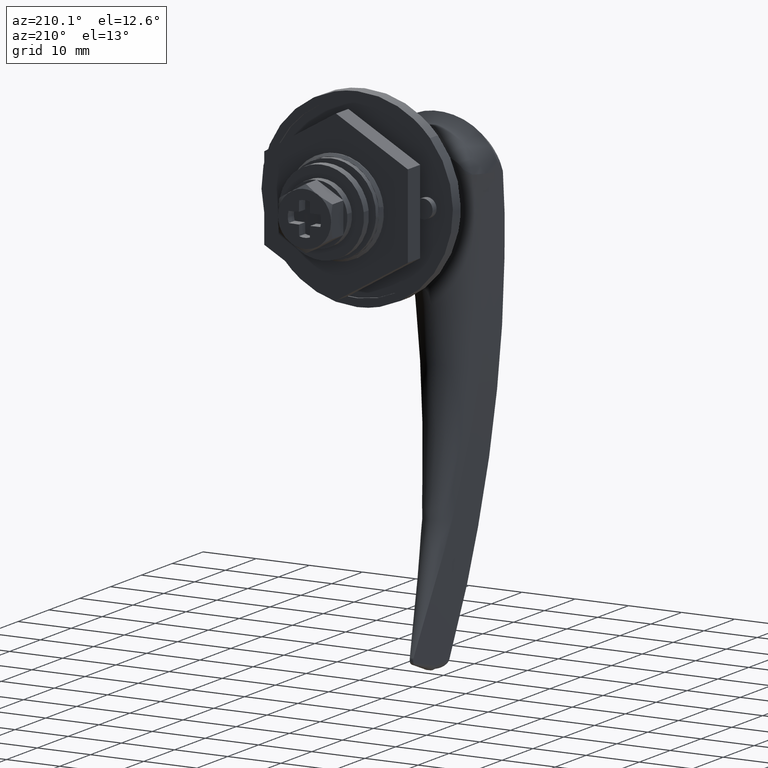
[diagram: clean part render]
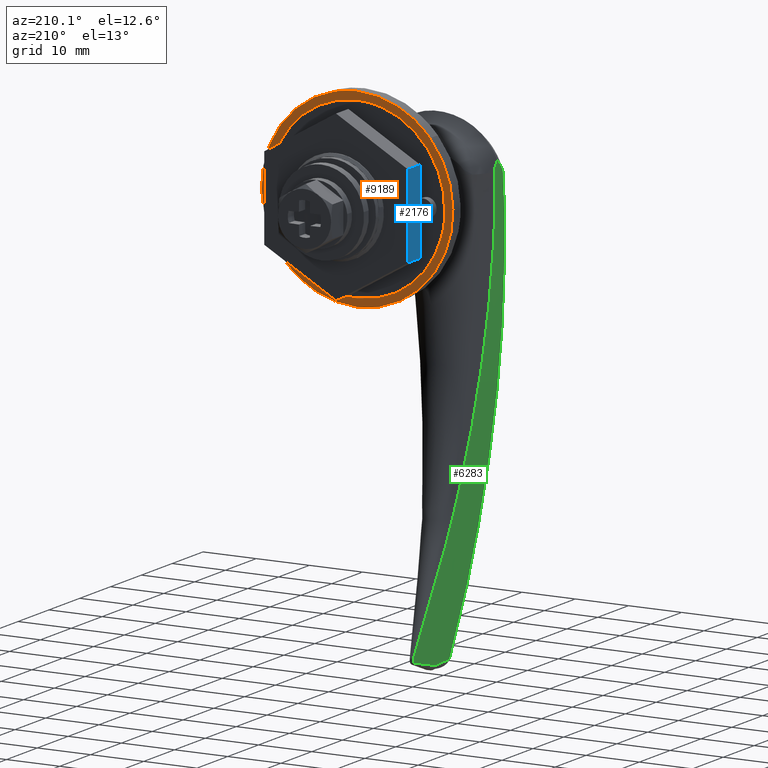
[diagram: same view with three faces highlighted in distinct colors, each labeled with its STEP entity id]
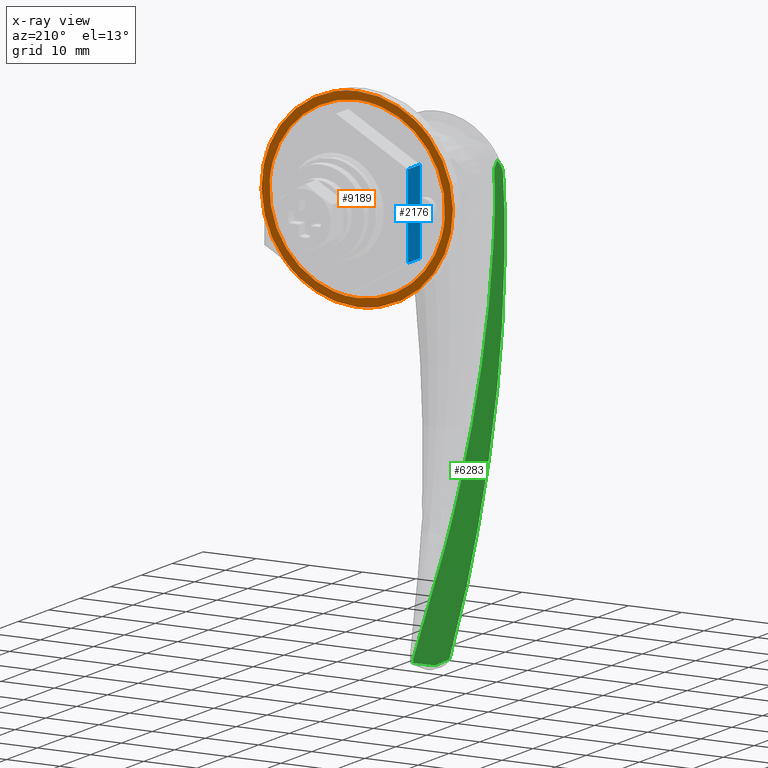
[diagram: x-ray of the same camera — body ghosted, the three highlighted faces saturated]
A machine part, auxiliary view with three faces highlighted in distinct colors.
The next image is the same camera in x-ray (body ghosted, the three faces saturated) — at least one of them is partly hidden behind the body in this view.
Their STEP definitions:

[orange] entity #9189 — the highlighted face is a freeform B-spline surface patch.
#8590=CARTESIAN_POINT('',(7.999999999999789,16.449136006591200,-1.294575079578128));
#8591=VERTEX_POINT('',#8590);
#8597=CARTESIAN_POINT('',(7.999999999999789,0.0,16.500000000000000));
#8598=VERTEX_POINT('',#8597);
#8599=CARTESIAN_POINT('',(7.999999999999789,16.449136006591200,-1.294575079578127));
#8600=CARTESIAN_POINT('',(7.999999999999788,16.500000000000004,-0.648286765695551));
#8601=CARTESIAN_POINT('',(7.999999999999789,16.500000000000000,0.0));
#8602=CARTESIAN_POINT('',(7.999999999999789,16.499999999999993,16.499999999999993));
#8603=CARTESIAN_POINT('',(7.999999999999789,0.0,16.500000000000000));
#8611=(BOUNDED_CURVE()B_SPLINE_CURVE(2,(#8599,#8600,#8601,#8602,#8603),.UNSPECIFIED.,.F.,.U.)B_SPLINE_CURVE_WITH_KNOTS((3,2,3),(0.736331300631335,0.750000000000000,1.0),.UNSPECIFIED.)CURVE()GEOMETRIC_REPRESENTATION_ITEM()RATIONAL_B_SPLINE_CURVE((0.969723356168828,0.983986122579674,1.0,0.707106781186548,1.0))REPRESENTATION_ITEM(''));
#8612=EDGE_CURVE('',#8591,#8598,#8611,.T.);
#8614=CARTESIAN_POINT('',(7.999999999999789,-16.449136006591200,1.294575079578131));
#8615=VERTEX_POINT('',#8614);
#8616=CARTESIAN_POINT('',(7.999999999999789,0.0,16.500000000000000));
#8617=CARTESIAN_POINT('',(7.999999999999789,-15.252443112232630,16.499999999999996));
#8618=CARTESIAN_POINT('',(7.999999999999789,-16.449136006591203,1.294575079578132));
#8626=(BOUNDED_CURVE()B_SPLINE_CURVE(2,(#8616,#8617,#8618),.UNSPECIFIED.,.F.,.U.)B_SPLINE_CURVE_WITH_KNOTS((3,3),(0.0,0.236331300631335),.UNSPECIFIED.)CURVE()GEOMETRIC_REPRESENTATION_ITEM()RATIONAL_B_SPLINE_CURVE((1.0,0.723120658606874,0.969723356168828))REPRESENTATION_ITEM(''));
#8627=EDGE_CURVE('',#8598,#8615,#8626,.T.);
#8673=CARTESIAN_POINT('',(7.999999999999789,0.0,-16.500000000000000));
#8674=VERTEX_POINT('',#8673);
#8675=CARTESIAN_POINT('',(7.999999999999789,-16.449136006591200,1.294575079578131));
#8676=CARTESIAN_POINT('',(7.999999999999789,-16.499999999999996,0.648286765695553));
#8677=CARTESIAN_POINT('',(7.999999999999789,-16.500000000000000,0.0));
#8678=CARTESIAN_POINT('',(7.999999999999789,-16.499999999999993,-16.499999999999993));
#8679=CARTESIAN_POINT('',(7.999999999999789,0.0,-16.500000000000000));
#8687=(BOUNDED_CURVE()B_SPLINE_CURVE(2,(#8675,#8676,#8677,#8678,#8679),.UNSPECIFIED.,.F.,.U.)B_SPLINE_CURVE_WITH_KNOTS((3,2,3),(0.236331300631335,0.250000000000000,0.500000000000000),.UNSPECIFIED.)CURVE()GEOMETRIC_REPRESENTATION_ITEM()RATIONAL_B_SPLINE_CURVE((0.969723356168828,0.983986122579674,1.0,0.707106781186548,1.0))REPRESENTATION_ITEM(''));
#8688=EDGE_CURVE('',#8615,#8674,#8687,.T.);
#8690=CARTESIAN_POINT('',(7.999999999999789,0.0,-16.500000000000000));
#8691=CARTESIAN_POINT('',(7.999999999999789,15.252443112232722,-16.500000000000007));
#8692=CARTESIAN_POINT('',(7.999999999999789,16.449136006591203,-1.294575079578128));
#8700=(BOUNDED_CURVE()B_SPLINE_CURVE(2,(#8690,#8691,#8692),.UNSPECIFIED.,.F.,.U.)B_SPLINE_CURVE_WITH_KNOTS((3,3),(0.500000000000000,0.736331300631336),.UNSPECIFIED.)CURVE()GEOMETRIC_REPRESENTATION_ITEM()RATIONAL_B_SPLINE_CURVE((1.0,0.723120658606873,0.969723356168830))REPRESENTATION_ITEM(''));
#8701=EDGE_CURVE('',#8674,#8591,#8700,.T.);
#8757=CARTESIAN_POINT('',(7.999999999999799,13.687309883016390,11.690061940223710));
#8758=VERTEX_POINT('',#8757);
#8764=CARTESIAN_POINT('',(7.999999999999799,0.0,-18.0));
#8765=VERTEX_POINT('',#8764);
#8766=CARTESIAN_POINT('',(7.999999999999799,13.687309883016383,11.690061940223710));
#8767=CARTESIAN_POINT('',(7.999999999999799,18.0,6.640548399370755));
#8768=CARTESIAN_POINT('',(7.999999999999799,18.0,0.0));
#8769=CARTESIAN_POINT('',(7.999999999999799,18.000000000000007,-18.000000000000007));
#8770=CARTESIAN_POINT('',(7.999999999999799,0.0,-18.0));
#8778=(BOUNDED_CURVE()B_SPLINE_CURVE(2,(#8766,#8767,#8768,#8769,#8770),.UNSPECIFIED.,.F.,.U.)B_SPLINE_CURVE_WITH_KNOTS((3,2,3),(0.136856870997593,0.250000000000000,0.500000000000000),.UNSPECIFIED.)CURVE()GEOMETRIC_REPRESENTATION_ITEM()RATIONAL_B_SPLINE_CURVE((0.854871038828549,0.867444579039437,1.0,0.707106781186547,1.0))REPRESENTATION_ITEM(''));
#8779=EDGE_CURVE('',#8758,#8765,#8778,.T.);
#8781=CARTESIAN_POINT('',(7.999999999999799,-13.687309883016390,-11.690061940223710));
#8782=VERTEX_POINT('',#8781);
#8783=CARTESIAN_POINT('',(7.999999999999799,0.0,-18.0));
#8784=CARTESIAN_POINT('',(7.999999999999798,-8.298115995525002,-17.999999999999996));
#8785=CARTESIAN_POINT('',(7.999999999999799,-13.687309883016393,-11.690061940223709));
#8793=(BOUNDED_CURVE()B_SPLINE_CURVE(2,(#8783,#8784,#8785),.UNSPECIFIED.,.F.,.U.)B_SPLINE_CURVE_WITH_KNOTS((3,3),(0.500000000000000,0.636856870997593),.UNSPECIFIED.)CURVE()GEOMETRIC_REPRESENTATION_ITEM()RATIONAL_B_SPLINE_CURVE((1.0,0.839662202147110,0.854871038828549))REPRESENTATION_ITEM(''));
#8794=EDGE_CURVE('',#8765,#8782,#8793,.T.);
#8898=CARTESIAN_POINT('',(7.999999999999799,0.0,18.0));
#8899=VERTEX_POINT('',#8898);
#8900=CARTESIAN_POINT('',(7.999999999999799,-13.687309883016393,-11.690061940223709));
#8901=CARTESIAN_POINT('',(7.999999999999799,-18.0,-6.640548399370755));
#8902=CARTESIAN_POINT('',(7.999999999999799,-18.0,0.0));
#8903=CARTESIAN_POINT('',(7.999999999999799,-18.000000000000007,18.000000000000007));
#8904=CARTESIAN_POINT('',(7.999999999999799,0.0,18.0));
#8912=(BOUNDED_CURVE()B_SPLINE_CURVE(2,(#8900,#8901,#8902,#8903,#8904),.UNSPECIFIED.,.F.,.U.)B_SPLINE_CURVE_WITH_KNOTS((3,2,3),(0.636856870997593,0.750000000000000,1.0),.UNSPECIFIED.)CURVE()GEOMETRIC_REPRESENTATION_ITEM()RATIONAL_B_SPLINE_CURVE((0.854871038828549,0.867444579039437,1.0,0.707106781186547,1.0))REPRESENTATION_ITEM(''));
#8913=EDGE_CURVE('',#8782,#8899,#8912,.T.);
#8915=CARTESIAN_POINT('',(7.999999999999799,0.0,18.0));
#8916=CARTESIAN_POINT('',(7.999999999999798,8.298115995525002,17.999999999999996));
#8917=CARTESIAN_POINT('',(7.999999999999799,13.687309883016383,11.690061940223710));
#8925=(BOUNDED_CURVE()B_SPLINE_CURVE(2,(#8915,#8916,#8917),.UNSPECIFIED.,.F.,.U.)B_SPLINE_CURVE_WITH_KNOTS((3,3),(0.0,0.136856870997593),.UNSPECIFIED.)CURVE()GEOMETRIC_REPRESENTATION_ITEM()RATIONAL_B_SPLINE_CURVE((1.0,0.839662202147110,0.854871038828549))REPRESENTATION_ITEM(''));
#8926=EDGE_CURVE('',#8899,#8758,#8925,.T.);
#9172=CARTESIAN_POINT('',(7.999999999999799,-19.792705549083308,-19.798199930225010));
#9173=CARTESIAN_POINT('',(7.999999999999799,-19.792705549083308,19.798200895820258));
#9174=CARTESIAN_POINT('',(7.999999999999799,19.792706514678549,-19.798199930225010));
#9175=CARTESIAN_POINT('',(7.999999999999799,19.792706514678549,19.798200895820258));
#9176=B_SPLINE_SURFACE_WITH_KNOTS('',1,1,((#9172,#9174),(#9173,#9175)),.UNSPECIFIED.,.F.,.F.,.U.,(2,2),(2,2),(0.0,39.596400826045269),(0.0,39.585412063761872),.UNSPECIFIED.);
#9177=ORIENTED_EDGE('',*,*,#8794,.F.);
#9178=ORIENTED_EDGE('',*,*,#8779,.F.);
#9179=ORIENTED_EDGE('',*,*,#8926,.F.);
#9180=ORIENTED_EDGE('',*,*,#8913,.F.);
#9181=EDGE_LOOP('',(#9177,#9178,#9179,#9180));
#9182=FACE_OUTER_BOUND('',#9181,.T.);
#9183=ORIENTED_EDGE('',*,*,#8701,.F.);
#9184=ORIENTED_EDGE('',*,*,#8688,.F.);
#9185=ORIENTED_EDGE('',*,*,#8627,.F.);
#9186=ORIENTED_EDGE('',*,*,#8612,.F.);
#9187=EDGE_LOOP('',(#9183,#9184,#9185,#9186));
#9188=FACE_BOUND('',#9187,.T.);
#9189=ADVANCED_FACE('',(#9182,#9188),#9176,.F.);

[blue] entity #2176 — the highlighted face is a freeform B-spline surface patch.
#2118=CARTESIAN_POINT('',(10.866025403784439,13.500000000000000,7.793999999999800));
#2119=VERTEX_POINT('',#2118);
#2134=CARTESIAN_POINT('',(14.866025403784461,13.500000000000000,7.793999999999800));
#2135=VERTEX_POINT('',#2134);
#2141=CARTESIAN_POINT('',(14.866025403784461,13.500000000000000,7.793999999999800));
#2142=CARTESIAN_POINT('',(10.866025403784439,13.500000000000000,7.793999999999800));
#2143=QUASI_UNIFORM_CURVE('',1,(#2141,#2142),.UNSPECIFIED.,.F.,.U.);
#2144=EDGE_CURVE('',#2135,#2119,#2143,.T.);
#2149=CARTESIAN_POINT('',(10.666224989529180,13.500000000000000,8.572620716116225));
#2150=CARTESIAN_POINT('',(10.666224989529180,13.500000000000000,-8.572620994851794));
#2151=CARTESIAN_POINT('',(15.065824923970050,13.500000000000000,8.572620716116225));
#2152=CARTESIAN_POINT('',(15.065824923970050,13.500000000000000,-8.572620994851794));
#2153=B_SPLINE_SURFACE_WITH_KNOTS('',1,1,((#2149,#2151),(#2150,#2152)),.UNSPECIFIED.,.F.,.F.,.U.,(2,2),(2,2),(0.0,17.145241710968019),(0.0,4.399599934440877),.UNSPECIFIED.);
#2154=CARTESIAN_POINT('',(10.866025403784439,13.500000000000000,-7.794000000000209));
#2155=VERTEX_POINT('',#2154);
#2156=CARTESIAN_POINT('',(10.866025403784439,13.500000000000000,-7.794000000000209));
#2157=CARTESIAN_POINT('',(10.866025403784439,13.500000000000000,7.793999999999800));
#2158=QUASI_UNIFORM_CURVE('',1,(#2156,#2157),.UNSPECIFIED.,.F.,.U.);
#2159=EDGE_CURVE('',#2155,#2119,#2158,.T.);
#2160=ORIENTED_EDGE('',*,*,#2159,.T.);
#2161=ORIENTED_EDGE('',*,*,#2144,.F.);
#2162=CARTESIAN_POINT('',(14.866025403784461,13.500000000000000,-7.794000000000209));
#2163=VERTEX_POINT('',#2162);
#2164=CARTESIAN_POINT('',(14.866025403784461,13.500000000000000,-7.794000000000209));
#2165=CARTESIAN_POINT('',(14.866025403784461,13.500000000000000,7.793999999999800));
#2166=QUASI_UNIFORM_CURVE('',1,(#2164,#2165),.UNSPECIFIED.,.F.,.U.);
#2167=EDGE_CURVE('',#2163,#2135,#2166,.T.);
#2168=ORIENTED_EDGE('',*,*,#2167,.F.);
#2169=CARTESIAN_POINT('',(14.866025403784461,13.500000000000000,-7.794000000000209));
#2170=CARTESIAN_POINT('',(10.866025403784439,13.500000000000000,-7.794000000000209));
#2171=QUASI_UNIFORM_CURVE('',1,(#2169,#2170),.UNSPECIFIED.,.F.,.U.);
#2172=EDGE_CURVE('',#2163,#2155,#2171,.T.);
#2173=ORIENTED_EDGE('',*,*,#2172,.T.);
#2174=EDGE_LOOP('',(#2160,#2161,#2168,#2173));
#2175=FACE_OUTER_BOUND('',#2174,.T.);
#2176=ADVANCED_FACE('',(#2175),#2153,.F.);

[green] entity #6283 — the highlighted face is a freeform B-spline surface patch.
#3579=CARTESIAN_POINT('',(-15.065196493878950,1.283048675955330,-82.048152637155795));
#3580=VERTEX_POINT('',#3579);
#3844=CARTESIAN_POINT('',(-9.692378405852219,0.322767126560581,-80.710937794971201));
#3845=VERTEX_POINT('',#3844);
#3846=CARTESIAN_POINT('',(-9.692378405852219,0.322767126560581,-80.710937794971201));
#3847=CARTESIAN_POINT('',(-11.483317768527799,0.642860976358831,-81.156676075699394));
#3848=CARTESIAN_POINT('',(-13.274257131203379,0.962954826157081,-81.602414356427587));
#3849=CARTESIAN_POINT('',(-15.065196493878950,1.283048675955330,-82.048152637155795));
#3850=B_SPLINE_CURVE_WITH_KNOTS('',3,(#3846,#3847,#3848,#3849),.UNSPECIFIED.,.F.,.U.,(4,4),(0.000010395492072,0.999763390952517),.UNSPECIFIED.);
#3851=EDGE_CURVE('',#3845,#3580,#3850,.T.);
#3935=CARTESIAN_POINT('',(-18.538468767128400,1.951048903006880,-81.589922599494400));
#3936=VERTEX_POINT('',#3935);
#3944=CARTESIAN_POINT('',(-15.065196493878950,1.283048675955330,-82.048152637155795));
#3945=CARTESIAN_POINT('',(-16.222953918295431,1.505715418305847,-81.895409291268663));
#3946=CARTESIAN_POINT('',(-17.380711342711919,1.728382160656363,-81.742665945381532));
#3947=CARTESIAN_POINT('',(-18.538468767128400,1.951048903006880,-81.589922599494400));
#3948=QUASI_UNIFORM_CURVE('',3,(#3944,#3945,#3946,#3947),.UNSPECIFIED.,.F.,.U.);
#3949=EDGE_CURVE('',#3580,#3936,#3948,.T.);
#5104=CARTESIAN_POINT('',(-9.651287503445849,0.344980329525140,-79.934393363356705));
#5105=VERTEX_POINT('',#5104);
#5106=CARTESIAN_POINT('',(-9.651287503445840,0.344980329525136,-79.934393363356804));
#5107=CARTESIAN_POINT('',(-9.626925536780588,0.337976550795620,-79.996944881655153));
#5108=CARTESIAN_POINT('',(-9.609638125973381,0.332243004354279,-80.061061688124582));
#5109=CARTESIAN_POINT('',(-9.593917040794771,0.325478818230868,-80.159496156281591));
#5110=CARTESIAN_POINT('',(-9.590393279647902,0.323532791937696,-80.192687491794388));
#5111=CARTESIAN_POINT('',(-9.586893498714010,0.320279223780375,-80.259855237708251));
#5112=CARTESIAN_POINT('',(-9.586949498018347,0.318990372535600,-80.293504040749852));
#5113=CARTESIAN_POINT('',(-9.592385192448466,0.316158030493876,-80.393400661417658));
#5114=CARTESIAN_POINT('',(-9.602982780483485,0.315619092910957,-80.459124263720383));
#5115=CARTESIAN_POINT('',(-9.629310168111786,0.316830701638818,-80.556402196831627));
#5116=CARTESIAN_POINT('',(-9.639830903234723,0.317576328176137,-80.588509815940540));
#5117=CARTESIAN_POINT('',(-9.663835648015796,0.319699813875621,-80.650846489705231));
#5118=CARTESIAN_POINT('',(-9.677365715879645,0.321079281426406,-80.681258936935251));
#5119=CARTESIAN_POINT('',(-9.692378405852217,0.322767126560581,-80.710937794971187));
#5120=B_SPLINE_CURVE_WITH_KNOTS('',3,(#5106,#5107,#5108,#5109,#5110,#5111,#5112,#5113,#5114,#5115,#5116,#5117,#5118,#5119),.UNSPECIFIED.,.F.,.U.,(4,2,2,2,2,2,4),(0.0,0.250000000000039,0.375000000000032,0.500000000000026,0.750000000000014,0.875000000000007,1.0),.UNSPECIFIED.);
#5121=EDGE_CURVE('',#5105,#3845,#5120,.T.);
#5221=CARTESIAN_POINT('',(-21.998726049434900,10.0,4.336809E-016));
#5222=VERTEX_POINT('',#5221);
#5422=CARTESIAN_POINT('',(-20.530725589905899,9.794657102171090,2.016108194241960));
#5423=VERTEX_POINT('',#5422);
#5674=CARTESIAN_POINT('',(-20.295497028232450,9.357555723486961,0.557908926937471));
#5675=VERTEX_POINT('',#5674);
#5713=CARTESIAN_POINT('',(-20.530725589905899,9.794657102171090,2.016108194241960));
#5714=CARTESIAN_POINT('',(-20.488965016390090,9.722132648457379,1.773396615330348));
#5715=CARTESIAN_POINT('',(-20.447728419746660,9.649286156520132,1.530684275364287));
#5716=CARTESIAN_POINT('',(-20.389125468875459,9.540173766160198,1.166044747645341));
#5717=CARTESIAN_POINT('',(-20.370138317487118,9.503832907939025,1.044403663319438));
#5718=CARTESIAN_POINT('',(-20.332926066057858,9.431044751985791,0.801034215241960));
#5719=CARTESIAN_POINT('',(-20.314953511120219,9.394695711716093,0.679236870155057));
#5720=CARTESIAN_POINT('',(-20.295497028232450,9.357555723486961,0.557908926937501));
#5721=B_SPLINE_CURVE_WITH_KNOTS('',3,(#5713,#5714,#5715,#5716,#5717,#5718,#5719,#5720),.UNSPECIFIED.,.F.,.U.,(4,2,2,4),(0.0,0.500000000000001,0.750000000000000,1.0),.UNSPECIFIED.);
#5722=EDGE_CURVE('',#5423,#5675,#5721,.T.);
#5991=CARTESIAN_POINT('',(-12.406527816280780,1.121411630660584,-73.0));
#5992=VERTEX_POINT('',#5991);
#5993=CARTESIAN_POINT('',(-9.651287503445849,0.344980329525140,-79.934393363356705));
#5994=CARTESIAN_POINT('',(-10.537763828644760,0.599831841143910,-77.658286477626774));
#5995=CARTESIAN_POINT('',(-11.433524150420810,0.855834196285819,-75.371901281790798));
#5996=CARTESIAN_POINT('',(-12.406527816280780,1.121411630660585,-72.999999999999986));
#5997=B_SPLINE_CURVE_WITH_KNOTS('',3,(#5993,#5994,#5995,#5996),.UNSPECIFIED.,.F.,.U.,(4,4),(0.011070396145209,0.092106282813239),.UNSPECIFIED.);
#5998=EDGE_CURVE('',#5105,#5992,#5997,.T.);
#6000=CARTESIAN_POINT('',(-16.424559791379700,2.241093281889550,-63.0));
#6001=VERTEX_POINT('',#6000);
#6002=CARTESIAN_POINT('',(-12.406527816280780,1.121411630660585,-72.999999999999986));
#6003=CARTESIAN_POINT('',(-13.731670731013381,1.483104055697379,-69.769685163280101));
#6004=CARTESIAN_POINT('',(-15.200084401564011,1.862556313053427,-66.380755310410237));
#6005=CARTESIAN_POINT('',(-16.424559791379661,2.241093281889553,-63.000000000000007));
#6006=B_SPLINE_CURVE_WITH_KNOTS('',3,(#6002,#6003,#6004,#6005),.UNSPECIFIED.,.F.,.U.,(4,4),(0.092106282813239,0.202469824930323),.UNSPECIFIED.);
#6007=EDGE_CURVE('',#5992,#6001,#6006,.T.);
#6009=CARTESIAN_POINT('',(-19.440357842009998,3.360774933118525,-53.0));
#6010=VERTEX_POINT('',#6009);
#6011=CARTESIAN_POINT('',(-16.424559791379661,2.241093281889552,-63.000000000000028));
#6012=CARTESIAN_POINT('',(-17.630807256586579,2.613995230710611,-59.669571673236277));
#6013=CARTESIAN_POINT('',(-18.600325067243109,2.986008938725502,-56.347076322825188));
#6014=CARTESIAN_POINT('',(-19.440357842010009,3.360774933118529,-53.000000000000050));
#6015=B_SPLINE_CURVE_WITH_KNOTS('',3,(#6011,#6012,#6013,#6014),.UNSPECIFIED.,.F.,.U.,(4,4),(0.202469824930323,0.311190460753007),.UNSPECIFIED.);
#6016=EDGE_CURVE('',#6001,#6010,#6015,.T.);
#6018=CARTESIAN_POINT('',(-21.531134637935299,4.480456584347505,-43.0));
#6019=VERTEX_POINT('',#6018);
#6020=CARTESIAN_POINT('',(-19.440357842009998,3.360774933118525,-53.0));
#6021=CARTESIAN_POINT('',(-20.272567198311091,3.732050645597604,-49.684095768904037));
#6022=CARTESIAN_POINT('',(-20.977692135525590,4.106027617825565,-46.344066289833087));
#6023=CARTESIAN_POINT('',(-21.531134637935299,4.480456584347505,-43.0));
#6024=B_SPLINE_CURVE_WITH_KNOTS('',3,(#6020,#6021,#6022,#6023),.UNSPECIFIED.,.F.,.U.,(4,4),(0.311190460753007,0.418898556285064),.UNSPECIFIED.);
#6025=EDGE_CURVE('',#6010,#6019,#6024,.T.);
#6027=CARTESIAN_POINT('',(-22.745784220162701,5.600138235576480,-33.0));
#6028=VERTEX_POINT('',#6027);
#6029=CARTESIAN_POINT('',(-21.531134637935299,4.480456584347505,-43.0));
#6030=CARTESIAN_POINT('',(-22.082339670728320,4.853371801143743,-39.669453175490382));
#6031=CARTESIAN_POINT('',(-22.483086239775869,5.226735364956419,-36.334902114455609));
#6032=CARTESIAN_POINT('',(-22.745784220162712,5.600138235576472,-33.000000000000099));
#6033=B_SPLINE_CURVE_WITH_KNOTS('',3,(#6029,#6030,#6031,#6032),.UNSPECIFIED.,.F.,.U.,(4,4),(0.418898556285064,0.526171207140988),.UNSPECIFIED.);
#6034=EDGE_CURVE('',#6019,#6028,#6033,.T.);
#6036=CARTESIAN_POINT('',(-23.111125393915799,6.719819886805451,-23.0));
#6037=VERTEX_POINT('',#6036);
#6038=CARTESIAN_POINT('',(-22.745784220162719,5.600138235576481,-33.000000000000007));
#6039=CARTESIAN_POINT('',(-23.008540227186209,5.973623586132880,-29.664361248159619));
#6040=CARTESIAN_POINT('',(-23.133186652464911,6.347148260863321,-26.328371287794909));
#6041=CARTESIAN_POINT('',(-23.111125393915771,6.719819886805451,-23.000000000000028));
#6042=B_SPLINE_CURVE_WITH_KNOTS('',3,(#6038,#6039,#6040,#6041),.UNSPECIFIED.,.F.,.U.,(4,4),(0.526171207140988,0.633467553158656),.UNSPECIFIED.);
#6043=EDGE_CURVE('',#6028,#6037,#6042,.T.);
#6045=CARTESIAN_POINT('',(-22.635008545549450,7.839501538034399,-13.000000000000160));
#6046=VERTEX_POINT('',#6045);
#6047=CARTESIAN_POINT('',(-23.111125393915771,6.719819886805452,-23.000000000000011));
#6048=CARTESIAN_POINT('',(-23.088960372048628,7.094244343137824,-19.655973991166171));
#6049=CARTESIAN_POINT('',(-22.918704365778130,7.467807707320764,-16.319638491045129));
#6050=CARTESIAN_POINT('',(-22.635008545549450,7.839501538034399,-13.000000000000160));
#6051=B_SPLINE_CURVE_WITH_KNOTS('',3,(#6047,#6048,#6049,#6050),.UNSPECIFIED.,.F.,.U.,(4,4),(0.633467553158656,0.741268558729060),.UNSPECIFIED.);
#6052=EDGE_CURVE('',#6037,#6046,#6051,.T.);
#6054=CARTESIAN_POINT('',(-21.201316537811952,8.959183189263369,-3.0));
#6055=VERTEX_POINT('',#6054);
#6056=CARTESIAN_POINT('',(-22.635008545549450,7.839501538034399,-13.000000000000160));
#6057=CARTESIAN_POINT('',(-22.348466133779009,8.214924928505978,-9.647052400479199));
#6058=CARTESIAN_POINT('',(-21.946195986562490,8.588441079647760,-6.311138565222255));
#6059=CARTESIAN_POINT('',(-21.201316537811952,8.959183189263369,-3.0));
#6060=B_SPLINE_CURVE_WITH_KNOTS('',3,(#6056,#6057,#6058,#6059),.UNSPECIFIED.,.F.,.U.,(4,4),(0.741268558729060,0.850151234908520),.UNSPECIFIED.);
#6061=EDGE_CURVE('',#6046,#6055,#6060,.T.);
#6063=CARTESIAN_POINT('',(-20.448328698120800,9.295087684632080,-5.691931E-016));
#6064=VERTEX_POINT('',#6063);
#6065=CARTESIAN_POINT('',(-21.201316537811920,8.959183189263372,-3.000000000000029));
#6066=CARTESIAN_POINT('',(-20.975724164377379,9.071465240514224,-1.997196648461637));
#6067=CARTESIAN_POINT('',(-20.718706739891822,9.183492849179343,-0.996665751646923));
#6068=CARTESIAN_POINT('',(-20.448328698120790,9.295087684632092,4.065758E-014));
#6069=B_SPLINE_CURVE_WITH_KNOTS('',3,(#6065,#6066,#6067,#6068),.UNSPECIFIED.,.F.,.U.,(4,4),(0.850151234908520,0.883127176702099),.UNSPECIFIED.);
#6070=EDGE_CURVE('',#6055,#6064,#6069,.T.);
#6072=CARTESIAN_POINT('',(-20.448328698120790,9.295087684632092,4.022390E-014));
#6073=CARTESIAN_POINT('',(-20.397842460086359,9.315925188259151,0.186102037165558));
#6074=CARTESIAN_POINT('',(-20.346890389634041,9.336747602778601,0.372069311851134));
#6075=CARTESIAN_POINT('',(-20.295497028232450,9.357555723486961,0.557908926937471));
#6076=B_SPLINE_CURVE_WITH_KNOTS('',3,(#6072,#6073,#6074,#6075),.UNSPECIFIED.,.F.,.U.,(4,4),(0.883127176702099,0.889284597015876),.UNSPECIFIED.);
#6077=EDGE_CURVE('',#6064,#5675,#6076,.T.);
#6182=CARTESIAN_POINT('',(-17.730109098251749,1.707626421902744,-84.132283947042509));
#6183=CARTESIAN_POINT('',(-14.886648811445641,1.211707949171796,-83.078293628103268));
#6184=CARTESIAN_POINT('',(-12.043188524639440,0.715789476440831,-82.024303309164097));
#6185=CARTESIAN_POINT('',(-9.199728237833314,0.219871003709882,-80.970312990224855));
#6186=CARTESIAN_POINT('',(-17.750120495835379,1.713519516335306,-84.072885038596382));
#6187=CARTESIAN_POINT('',(-14.905133502704510,1.217116429779071,-83.025489761112325));
#6188=CARTESIAN_POINT('',(-12.060146509573521,0.720713343222819,-81.978094483628382));
#6189=CARTESIAN_POINT('',(-9.215159516442633,0.224310256666584,-80.930699206144340));
#6190=CARTESIAN_POINT('',(-19.072983505534879,2.103085342756024,-80.146291782353032));
#6191=CARTESIAN_POINT('',(-16.127072860506381,1.574646627464627,-79.534864874997325));
#6192=CARTESIAN_POINT('',(-13.181162215477849,1.046207912173232,-78.923437967641632));
#6193=CARTESIAN_POINT('',(-10.235251570449330,0.517769196881837,-78.312011060285940));
#6194=CARTESIAN_POINT('',(-21.956948693873031,2.952375309839426,-71.585950933196173));
#6195=CARTESIAN_POINT('',(-18.791015040703439,2.354095925195796,-71.924975881737652));
#6196=CARTESIAN_POINT('',(-15.625081387533980,1.755816540552198,-72.264000830279116));
#6197=CARTESIAN_POINT('',(-12.459147734364331,1.157537155908567,-72.603025778820594));
#6198=CARTESIAN_POINT('',(-23.762608040874401,3.771336350822882,-63.329133023322029));
#6199=CARTESIAN_POINT('',(-21.378815392366299,3.257131553370166,-63.233037593663241));
#6200=CARTESIAN_POINT('',(-18.995022743857980,2.742926755917392,-63.136942164004473));
#6201=CARTESIAN_POINT('',(-16.611230095349871,2.228721958464675,-63.040846734345813));
#6202=CARTESIAN_POINT('',(-25.537978858398841,4.797771867346515,-52.979930004663863));
#6203=CARTESIAN_POINT('',(-23.535676391248050,4.314306790490070,-53.005253432624087));
#6204=CARTESIAN_POINT('',(-21.533373924097461,3.830841713633662,-53.030576860584432));
#6205=CARTESIAN_POINT('',(-19.531071456946659,3.347376636777219,-53.055900288544670));
#6206=CARTESIAN_POINT('',(-26.418682122604999,5.784479922846680,-43.037624209221867));
#6207=CARTESIAN_POINT('',(-24.831250336138439,5.346984661821766,-43.030896145390336));
#6208=CARTESIAN_POINT('',(-23.243818549671900,4.909489400796864,-43.024168081558862));
#6209=CARTESIAN_POINT('',(-21.656386763205340,4.471994139771944,-43.017440017727338));
#6210=CARTESIAN_POINT('',(-26.622298586513960,6.778767772115844,-32.994240869257411));
#6211=CARTESIAN_POINT('',(-25.369972173870352,6.383950785616538,-32.996040990327451));
#6212=CARTESIAN_POINT('',(-24.117645761226690,5.989133799117207,-32.997841111397477));
#6213=CARTESIAN_POINT('',(-22.865319348583078,5.594316812617903,-32.999641232467489));
#6214=CARTESIAN_POINT('',(-26.097907225517272,7.779501850931389,-22.978141301023591));
#6215=CARTESIAN_POINT('',(-25.146701547317321,7.425391180607000,-22.977655385626569));
#6216=CARTESIAN_POINT('',(-24.195495869117490,7.071280510282637,-22.977169470229491));
#6217=CARTESIAN_POINT('',(-23.244290190917550,6.717169839958236,-22.976683554832469));
#6218=CARTESIAN_POINT('',(-24.854506838627799,8.747099889402925,-12.949419468079331));
#6219=CARTESIAN_POINT('',(-24.148421850700061,8.444943652867030,-12.949555768714090));
#6220=CARTESIAN_POINT('',(-23.442336862772422,8.142787416331180,-12.949692069348840));
#6221=CARTESIAN_POINT('',(-22.736251874844729,7.840631179795288,-12.949828369983580));
#6222=CARTESIAN_POINT('',(-23.328611415629531,9.584354533409908,-5.300858824416923));
#6223=CARTESIAN_POINT('',(-22.824701069492829,9.288626537191821,-5.300849783452015));
#6224=CARTESIAN_POINT('',(-22.320790723356019,8.992898540973661,-5.300840742487107));
#6225=CARTESIAN_POINT('',(-21.816880377219270,8.697170544755561,-5.300831701522189));
#6226=CARTESIAN_POINT('',(-22.061324844041010,9.983688420958556,-0.156098218818304));
#6227=CARTESIAN_POINT('',(-21.539225171251221,9.747157666334426,-0.156098467207992));
#6228=CARTESIAN_POINT('',(-21.017125498461489,9.510626911710315,-0.156098715597680));
#6229=CARTESIAN_POINT('',(-20.495025825671689,9.274096157086188,-0.156098963987366));
#6230=CARTESIAN_POINT('',(-21.555521005061220,10.151717887510021,1.671916409310076));
#6231=CARTESIAN_POINT('',(-21.029274497579038,9.927464412896704,1.671914655681882));
#6232=CARTESIAN_POINT('',(-20.503027990096950,9.703210938283419,1.671912902053687));
#6233=CARTESIAN_POINT('',(-19.976781482614768,9.478957463670106,1.671911148425495));
#6234=CARTESIAN_POINT('',(-21.316276315928860,10.232428499284440,2.504427796351475));
#6235=CARTESIAN_POINT('',(-20.788512245138271,10.012363773701949,2.504425644788242));
#6236=CARTESIAN_POINT('',(-20.260748174347771,9.792299048119498,2.504423493225009));
#6237=CARTESIAN_POINT('',(-19.732984103557179,9.572234322537007,2.504421341661778));
#6238=B_SPLINE_SURFACE_WITH_KNOTS('',3,3,((#6182,#6186,#6190,#6194,#6198,#6202,#6206,#6210,#6214,#6218,#6222,#6226,#6230,#6234),(#6183,#6187,#6191,#6195,#6199,#6203,#6207,#6211,#6215,#6219,#6223,#6227,#6231,#6235),(#6184,#6188,#6192,#6196,#6200,#6204,#6208,#6212,#6216,#6220,#6224,#6228,#6232,#6236),(#6185,#6189,#6193,#6197,#6201,#6205,#6209,#6213,#6217,#6221,#6225,#6229,#6233,#6237)),.UNSPECIFIED.,.F.,.F.,.U.,(4,4),(4,1,1,1,1,1,1,1,1,1,1,4),(0.0,9.218398675470393),(0.0,0.188866975086954,12.485141732464250,27.218777654138620,41.733084051490351,56.112215374610493,70.433214426882046,84.757376805371081,99.148911705362906,113.684850641645100,118.087169661502900,121.785649323448300),.UNSPECIFIED.);
#6239=ORIENTED_EDGE('',*,*,#5121,.T.);
#6240=ORIENTED_EDGE('',*,*,#3851,.T.);
#6241=ORIENTED_EDGE('',*,*,#3949,.T.);
#6242=CARTESIAN_POINT('',(-18.538468767128389,1.951048903006880,-81.589922599494358));
#6243=CARTESIAN_POINT('',(-19.563898376366609,2.254261342636921,-78.535030850372053));
#6244=CARTESIAN_POINT('',(-22.019257144829290,2.992833779536878,-71.093867097746028));
#6245=CARTESIAN_POINT('',(-23.727205180541350,3.763699646079205,-63.327705863507191));
#6246=CARTESIAN_POINT('',(-25.508241693703152,4.790591693096641,-52.980306095169801));
#6247=CARTESIAN_POINT('',(-26.395106403525698,5.777982468618800,-43.037524287483997));
#6248=CARTESIAN_POINT('',(-26.603699679807050,6.772904153634220,-32.994267603728147));
#6249=CARTESIAN_POINT('',(-26.083780408826900,7.774242781686510,-22.978134084458450));
#6250=CARTESIAN_POINT('',(-24.844020428148049,8.742612420642780,-12.949421492346140));
#6251=CARTESIAN_POINT('',(-23.321127598773302,9.579962533563261,-5.300858690145170));
#6252=CARTESIAN_POINT('',(-22.260669313888720,9.914787197395073,-0.996669521965935));
#6253=CARTESIAN_POINT('',(-21.998726049434850,9.999999999999998,4.000706E-014));
#6254=B_SPLINE_CURVE_WITH_KNOTS('',3,(#6242,#6243,#6244,#6245,#6246,#6247,#6248,#6249,#6250,#6251,#6252,#6253),.UNSPECIFIED.,.F.,.U.,(4,1,1,1,1,1,1,1,1,4),(0.018721215441242,0.092106282813239,0.202469824930323,0.311190460753007,0.418898556285064,0.526171207140988,0.633467553158656,0.741268558729060,0.850151234908520,0.883127176702099),.UNSPECIFIED.);
#6255=EDGE_CURVE('',#3936,#5222,#6254,.T.);
#6256=ORIENTED_EDGE('',*,*,#6255,.T.);
#6257=CARTESIAN_POINT('',(-20.530725589905881,9.794657102171094,2.016108194241951));
#6258=CARTESIAN_POINT('',(-20.679831674250149,9.824692846963606,1.870188534825271));
#6259=CARTESIAN_POINT('',(-20.824352807513481,9.852394000742510,1.719176632870940));
#6260=CARTESIAN_POINT('',(-21.101994676847362,9.902029772899732,1.405361952481897));
#6261=CARTESIAN_POINT('',(-21.234074506630542,9.923779045806924,1.243730739414653));
#6262=CARTESIAN_POINT('',(-21.482588628540960,9.959974108665803,0.909490218126834));
#6263=CARTESIAN_POINT('',(-21.599028698577929,9.974425525708972,0.736885196326243));
#6264=CARTESIAN_POINT('',(-21.813531480576820,9.994433894549321,0.378755182094087));
#6265=CARTESIAN_POINT('',(-21.911602727093211,10.0,0.193236587856365));
#6266=CARTESIAN_POINT('',(-21.998726049434900,10.0,1.084202E-016));
#6267=B_SPLINE_CURVE_WITH_KNOTS('',3,(#6257,#6258,#6259,#6260,#6261,#6262,#6263,#6264,#6265,#6266),.UNSPECIFIED.,.F.,.U.,(4,2,2,2,4),(0.0,0.250000000000000,0.500000000000000,0.750000000000000,1.0),.UNSPECIFIED.);
#6268=EDGE_CURVE('',#5423,#5222,#6267,.T.);
#6269=ORIENTED_EDGE('',*,*,#6268,.F.);
#6270=ORIENTED_EDGE('',*,*,#5722,.T.);
#6271=ORIENTED_EDGE('',*,*,#6077,.F.);
#6272=ORIENTED_EDGE('',*,*,#6070,.F.);
#6273=ORIENTED_EDGE('',*,*,#6061,.F.);
#6274=ORIENTED_EDGE('',*,*,#6052,.F.);
#6275=ORIENTED_EDGE('',*,*,#6043,.F.);
#6276=ORIENTED_EDGE('',*,*,#6034,.F.);
#6277=ORIENTED_EDGE('',*,*,#6025,.F.);
#6278=ORIENTED_EDGE('',*,*,#6016,.F.);
#6279=ORIENTED_EDGE('',*,*,#6007,.F.);
#6280=ORIENTED_EDGE('',*,*,#5998,.F.);
#6281=EDGE_LOOP('',(#6239,#6240,#6241,#6256,#6269,#6270,#6271,#6272,#6273,#6274,#6275,#6276,#6277,#6278,#6279,#6280));
#6282=FACE_OUTER_BOUND('',#6281,.T.);
#6283=ADVANCED_FACE('',(#6282),#6238,.F.);